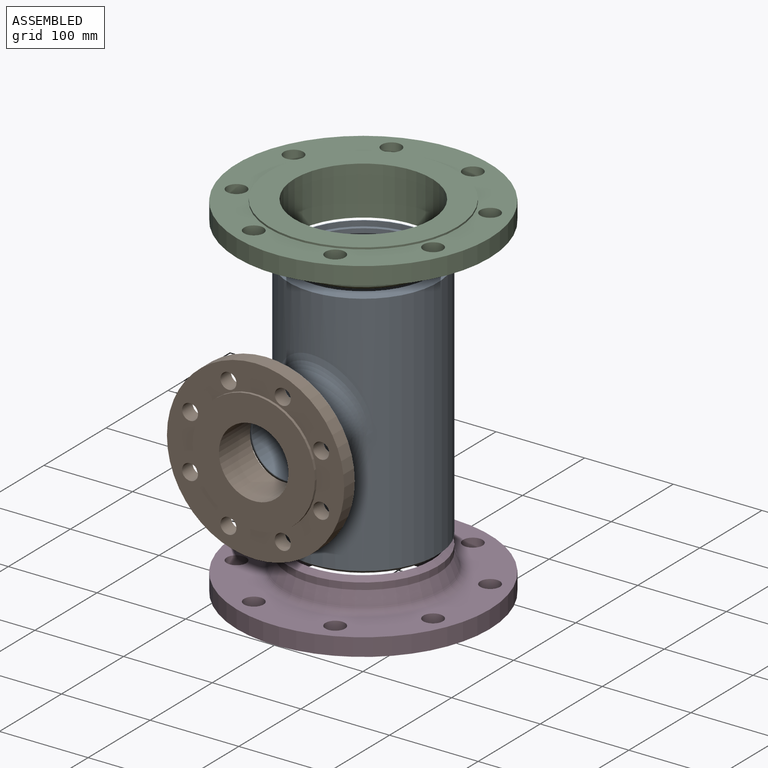
[diagram: assembled view]
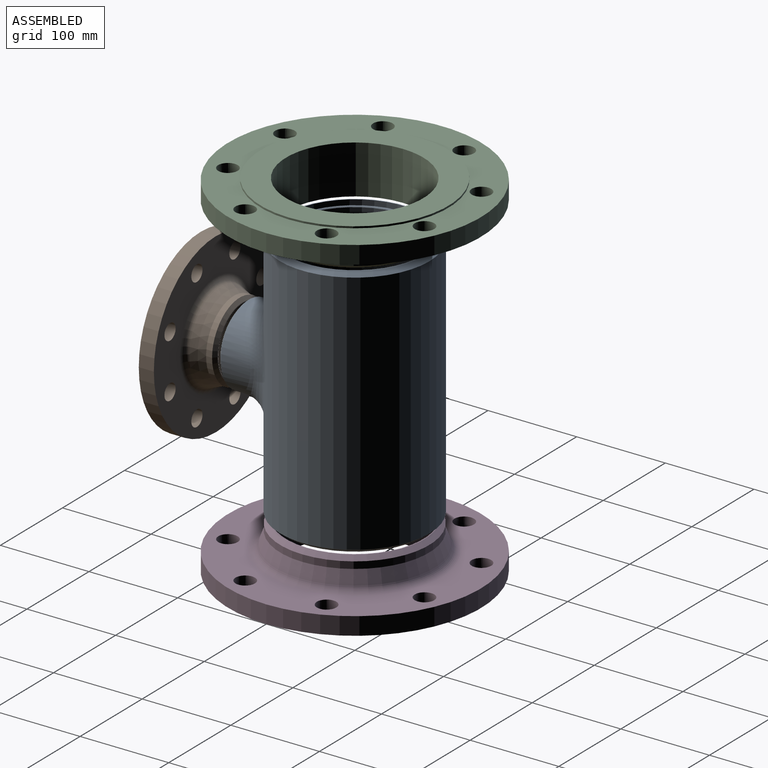
[diagram: assembled view, second angle]
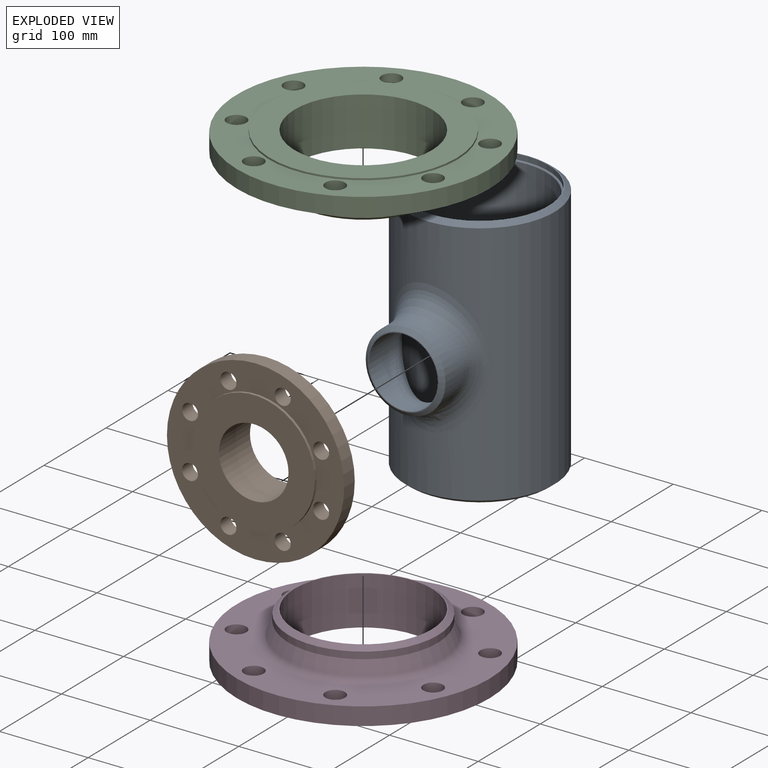
[diagram: exploded view]
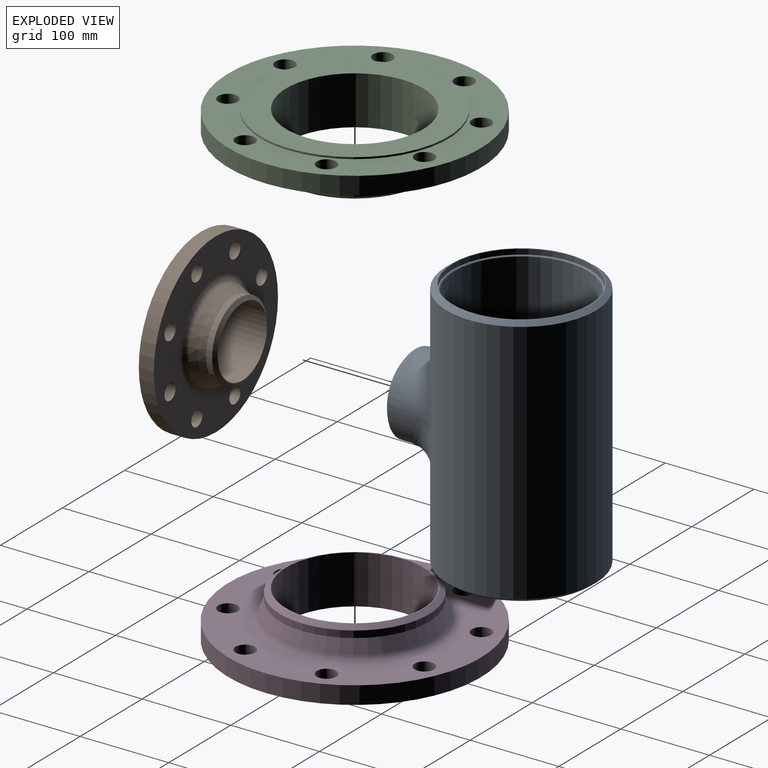
[diagram: exploded view, second angle]
ASSEMBLY  parts=4 mates=3
PART A: 18 faces, bbox 168.6x286.5x207.9 mm
  f0: cylinder r=75.5mm len=272.5mm, axis (0,-1,0), area 117864mm2, adj f5,f16,f17
  f1: cylinder r=84.3mm len=277.6mm, axis (0,1,0), area 133141.5mm2, adj f6,f8,f9
  f2: cylinder r=45mm len=90mm, axis (0,0,-1), area 5372mm2, adj f6,f7
  f3: plane 80x80mm, normal (0,0,1), area 248.2mm2, adj f4,f7
  f4: cylinder r=39mm len=78mm, axis (0,0,-1), area 7474.5mm2, adj f3,f5
  f5: bspline ~138.04x98.78mm, area 10824.2mm2, adj f0,f4
  f6: bspline ~150.05x110.66mm, area 12241.4mm2, adj f1,f2
  f7: cone r=40mm half-angle=52.5deg, axis (0,0,-1), area 1683mm2, adj f2,f3
  f8: cone r=78.5mm half-angle=52.5deg, axis (0,-1,0), area 3739.1mm2, adj f1,f14
  f9: cone r=78.5mm half-angle=52.5deg, axis (0,1,0), area 3739.1mm2, adj f1,f15
  f10: plane 155x155mm, normal (0,-1,0), area 483.8mm2, adj f11,f17
  f11: cylinder r=77.5mm len=155mm, axis (0,-1,0), area 2921.7mm2, adj f10,f15
  f12: plane 155x155mm, normal (0,1,0), area 483.8mm2, adj f13,f16
  f13: cylinder r=77.5mm len=155mm, axis (0,-1,0), area 2921.7mm2, adj f12,f14
  f14: plane 157x157mm, normal (0,1,0), area 490.1mm2, adj f8,f13
  f15: plane 157x157mm, normal (0,-1,0), area 490.1mm2, adj f9,f11
  f16: cone r=75.5mm half-angle=45deg, axis (0,1,0), area 675.3mm2, adj f0,f12
  f17: cone r=76.5mm half-angle=45deg, axis (0,-1,0), area 675.3mm2, adj f0,f10
PART B: 20 faces, bbox 200x200x50 mm
  f0: plane 80.5x80.5mm, normal (0,0,1), area 249.8mm2, adj f1,f17
  f1: cylinder r=39.25mm len=78.5mm, axis (0,0,1), area 12330.8mm2, adj f0,f2
  f2: plane 138x138mm, normal (0,0,-1), area 10117.3mm2, adj f1,f3
  f3: cylinder r=69mm len=138mm, axis (0,0,1), area 1300.6mm2, adj f2,f4
  f4: plane 200x200mm, normal (0,0,-1), area 14423.1mm2, adj f3,f5,f9,f10,f11,f12,f13,f14
  f5: cylinder r=100mm len=200mm, axis (0,0,1), area 10681.4mm2, adj f4,f6
  f6: plane 200x200mm, normal (0,0,1), area 18846.9mm2, adj f5,f9,f10,f11,f12,f13,f14,f15
  f7: cone r=52.5mm half-angle=21.9deg, axis (0,0,-1), area 4818.2mm2, adj f8,f19
  f8: cylinder r=44.45mm len=88.9mm, axis (0,0,1), area 1892.5mm2, adj f7,f18
  f9: cylinder r=9mm len=18mm, axis (0,0,1), area 961.3mm2, adj f4,f6
  f10: cylinder r=9mm len=18mm, axis (0,0,1), area 961.3mm2, adj f4,f6
  f11: cylinder r=9mm len=18mm, axis (0,0,1), area 961.3mm2, adj f4,f6
  f12: cylinder r=9mm len=18mm, axis (0,0,1), area 961.3mm2, adj f4,f6
  f13: cylinder r=9mm len=18mm, axis (0,0,1), area 961.3mm2, adj f4,f6
  f14: cylinder r=9mm len=18mm, axis (0,0,1), area 961.3mm2, adj f4,f6
  f15: cylinder r=9mm len=18mm, axis (0,0,1), area 961.3mm2, adj f4,f6
  f16: cylinder r=9mm len=18mm, axis (0,0,1), area 961.3mm2, adj f4,f6
  f17: cylinder r=40.25mm len=80.5mm, axis (0,0,-1), area 0.3mm2, adj f0,f18
  f18: cone r=40.25mm half-angle=52.5deg, axis (0,0,-1), area 1408.7mm2, adj f8,f17
  f19: torus R=57.9mm, axis (0,0,-1), area 3206.2mm2, adj f6,f7
PART C: 19 faces, bbox 285x285x55 mm
  f0: plane 157x157mm, normal (0,0,1), area 490.1mm2, adj f1,f17
  f1: cylinder r=77.5mm len=155mm, axis (0,0,1), area 26782.1mm2, adj f0,f2
  f2: plane 212x212mm, normal (0,0,-1), area 16429.7mm2, adj f1,f3
  f3: cylinder r=106mm len=212mm, axis (0,0,1), area 1332mm2, adj f2,f4
  f4: plane 285x285mm, normal (0,0,-1), area 25454mm2, adj f3,f5,f9,f10,f11,f12,f13,f14
  f5: cylinder r=142.5mm len=285mm, axis (0,0,1), area 17907.1mm2, adj f4,f6
  f6: plane 285x285mm, normal (0,0,1), area 30000.9mm2, adj f5,f9,f10,f11,f12,f13,f14,f15
  f7: cone r=92mm half-angle=20.5deg, axis (0,0,-1), area 8449.2mm2, adj f8,f18
  f8: cylinder r=84.15mm len=168.3mm, axis (0,0,1), area 4052.5mm2, adj f7,f17
  f9: cylinder r=11mm len=22mm, axis (0,0,1), area 1382.3mm2, adj f4,f6
  f10: cylinder r=11mm len=22mm, axis (0,0,1), area 1382.3mm2, adj f4,f6
  f11: cylinder r=11mm len=22mm, axis (0,0,1), area 1382.3mm2, adj f4,f6
  f12: cylinder r=11mm len=22mm, axis (0,0,1), area 1382.3mm2, adj f4,f6
  f13: cylinder r=11mm len=22mm, axis (0,0,1), area 1382.3mm2, adj f4,f6
  f14: cylinder r=11mm len=22mm, axis (0,0,1), area 1382.3mm2, adj f4,f6
  f15: cylinder r=11mm len=22mm, axis (0,0,1), area 1382.3mm2, adj f4,f6
  f16: cylinder r=11mm len=22mm, axis (0,0,1), area 1382.3mm2, adj f4,f6
  f17: cone r=78.5mm half-angle=52.5deg, axis (0,0,-1), area 3639mm2, adj f0,f8
  f18: torus R=98.94mm, axis (0,0,-1), area 7132.7mm2, adj f6,f7
PART D: same geometry as C
PLACE A rot(axis=(1,0,0),90deg) t=(0.38,0.09,173.56)mm
PLACE B rot(axis=(-1,0,0),90deg) t=(0.38,-176.51,173.56)mm
PLACE C rot(axis=(1,0,0),180deg) t=(0.38,0.09,374.81)mm
PLACE D t=(0.38,0.09,-27.69)mm fixed
MATE fastened C.f1 <-> A.f0  axis (0,0,1) through (0.38,0.09,319.81)mm
MATE fastened B.f1 <-> A.f2  axis (0,-1,0) through (0.38,-126.51,173.56)mm
MATE fastened A.f0 <-> D.f1  axis (0,0,1) through (0.38,0.09,30.31)mm
